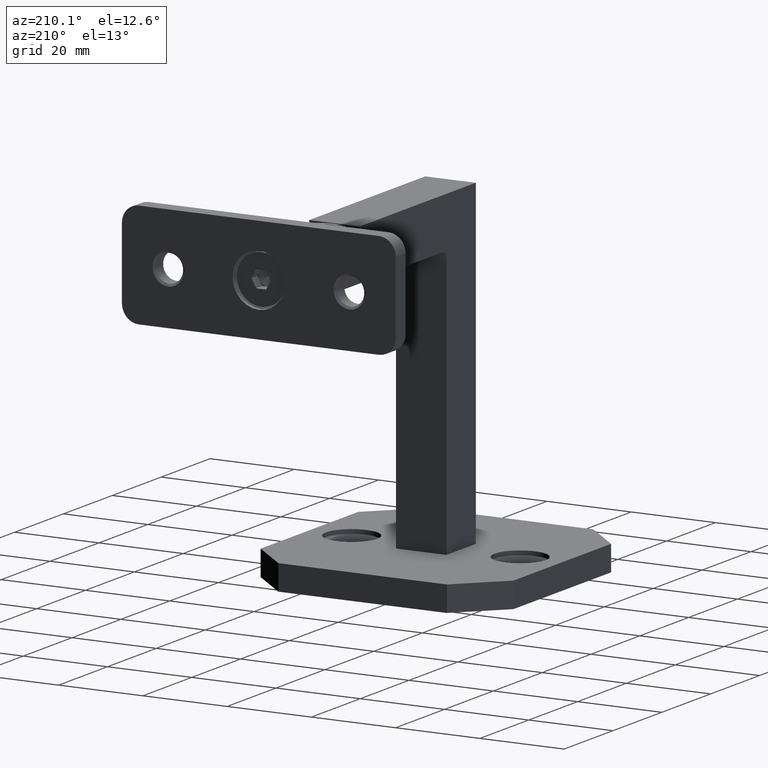
[diagram: clean part render]
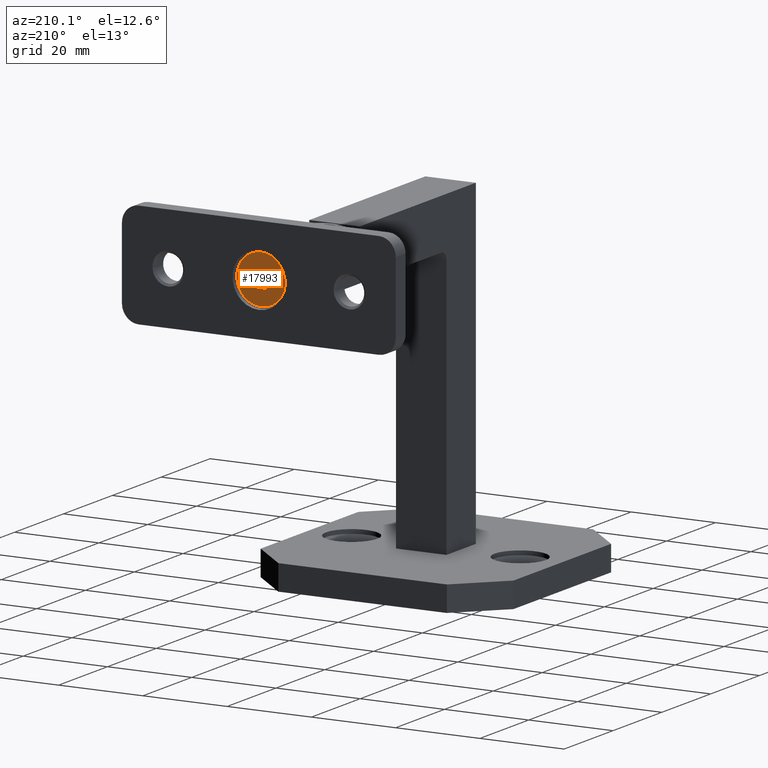
[diagram: same view with one face highlighted and labeled with its STEP entity id]
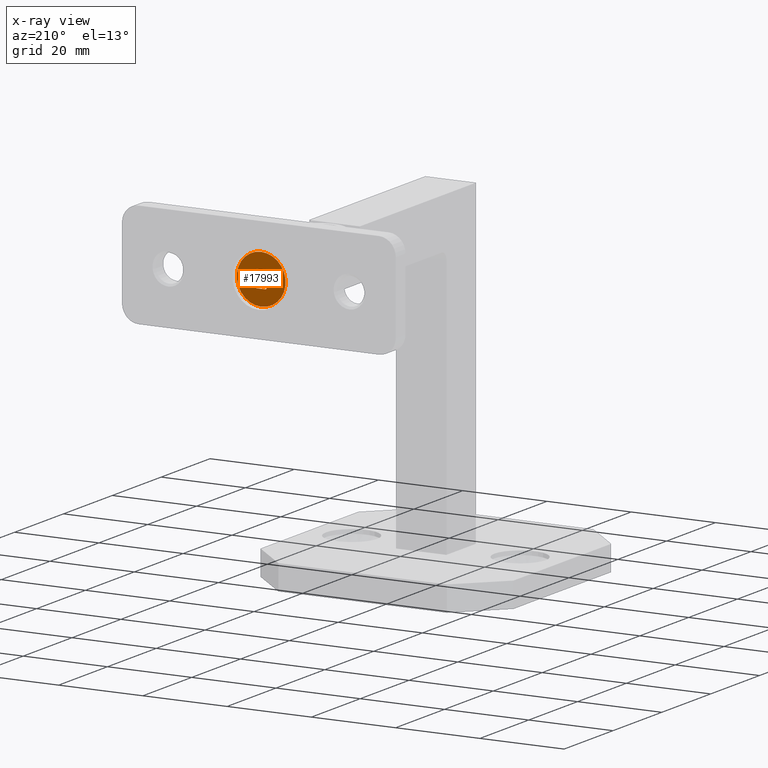
[diagram: x-ray of the same camera — body ghosted, the highlighted face saturated]
A machine part, auxiliary view. The second image highlights one B-rep face of the part: STEP entity #17993.
The next image is the same camera in x-ray: the body ghosted, the highlighted face saturated — about 0% of this face is hidden behind the body in this view.
In plain terms, the highlighted planar face has unit normal (0, 1, 0).
Its self-contained STEP definition (entity closure, byte-faithful):
#217 = CIRCLE ( 'NONE', #14772, 5.784999999999998366 ) ;
#505 = VECTOR ( 'NONE', #675, 1000.000000000000227 ) ;
#675 = DIRECTION ( 'NONE',  ( 0.000000000000000000, 0.5000000000000007772, 0.8660254037844381525 ) ) ;
#680 = EDGE_LOOP ( 'NONE', ( #21448, #2578, #15068, #23680, #17442, #17390 ) ) ;
#1183 = PLANE ( 'NONE',  #7772 ) ;
#2461 = CARTESIAN_POINT ( 'NONE',  ( 0.000000000000000000, 1.160474041071148710, 2.009999999999998455 ) ) ;
#2578 = ORIENTED_EDGE ( 'NONE', *, *, #20068, .T. ) ;
#3301 = FACE_BOUND ( 'NONE', #680, .T. ) ;
#4316 = EDGE_CURVE ( 'NONE', #17733, #14574, #13838, .T. ) ;
#4967 = CARTESIAN_POINT ( 'NONE',  ( 0.000000000000000000, -1.160474041071147600, 2.009999999999999343 ) ) ;
#5431 = VECTOR ( 'NONE', #22619, 1000.000000000000227 ) ;
#5454 = DIRECTION ( 'NONE',  ( 0.000000000000000000, -0.5000000000000007772, 0.8660254037844381525 ) ) ;
#5985 = LINE ( 'NONE', #15137, #5431 ) ;
#6065 = DIRECTION ( 'NONE',  ( 0.000000000000000000, 0.000000000000000000, 1.000000000000000000 ) ) ;
#6096 = ORIENTED_EDGE ( 'NONE', *, *, #22349, .T. ) ;
#6418 = CARTESIAN_POINT ( 'NONE',  ( 0.000000000000000000, 0.000000000000000000, 0.000000000000000000 ) ) ;
#6444 = EDGE_CURVE ( 'NONE', #21820, #17733, #16777, .T. ) ;
#6457 = CARTESIAN_POINT ( 'NONE',  ( 0.000000000000000000, -2.320948082142291646, -2.168404344971008868E-16 ) ) ;
#7052 = CARTESIAN_POINT ( 'NONE',  ( 0.000000000000000000, 1.160474041071148710, -2.009999999999998455 ) ) ;
#7206 = DIRECTION ( 'NONE',  ( 0.000000000000000000, 1.000000000000000000, 5.605651487825218176E-16 ) ) ;
#7741 = VECTOR ( 'NONE', #7206, 1000.000000000000000 ) ;
#7772 = AXIS2_PLACEMENT_3D ( 'NONE', #6418, #21003, #8282 ) ;
#8254 = VERTEX_POINT ( 'NONE', #10363 ) ;
#8282 = DIRECTION ( 'NONE',  ( -0.000000000000000000, 0.000000000000000000, 1.000000000000000000 ) ) ;
#8455 = VECTOR ( 'NONE', #13720, 1000.000000000000114 ) ;
#8617 = VECTOR ( 'NONE', #21533, 1000.000000000000000 ) ;
#8816 = CARTESIAN_POINT ( 'NONE',  ( 0.000000000000000000, 1.160474041071148710, 2.009999999999998455 ) ) ;
#10271 = VERTEX_POINT ( 'NONE', #4967 ) ;
#10363 = CARTESIAN_POINT ( 'NONE',  ( -0.000000000000000000, -1.160474041071148044, -2.009999999999999787 ) ) ;
#11155 = CARTESIAN_POINT ( 'NONE',  ( 0.000000000000000000, 7.084581733067437038E-16, -5.784999999999998366 ) ) ;
#13026 = CARTESIAN_POINT ( 'NONE',  ( 0.000000000000000000, 2.320948082142297864, 1.845044017635223792E-16 ) ) ;
#13176 = CARTESIAN_POINT ( 'NONE',  ( 0.000000000000000000, 0.000000000000000000, 0.000000000000000000 ) ) ;
#13432 = VERTEX_POINT ( 'NONE', #21508 ) ;
#13460 = LINE ( 'NONE', #8816, #8617 ) ;
#13720 = DIRECTION ( 'NONE',  ( 0.000000000000000000, 0.4999999999999987232, -0.8660254037844392627 ) ) ;
#13838 = LINE ( 'NONE', #13026, #20981 ) ;
#14345 = VERTEX_POINT ( 'NONE', #11155 ) ;
#14379 = CIRCLE ( 'NONE', #20593, 5.784999999999998366 ) ;
#14574 = VERTEX_POINT ( 'NONE', #2461 ) ;
#14753 = EDGE_CURVE ( 'NONE', #14574, #10271, #13460, .T. ) ;
#14772 = AXIS2_PLACEMENT_3D ( 'NONE', #13176, #20487, #6065 ) ;
#15068 = ORIENTED_EDGE ( 'NONE', *, *, #17018, .T. ) ;
#15137 = CARTESIAN_POINT ( 'NONE',  ( 0.000000000000000000, -1.160474041071147600, 2.009999999999999343 ) ) ;
#15718 = ORIENTED_EDGE ( 'NONE', *, *, #19122, .T. ) ;
#16247 = CARTESIAN_POINT ( 'NONE',  ( 0.000000000000000000, 2.320948082142297864, 1.845044017635223792E-16 ) ) ;
#16777 = LINE ( 'NONE', #18911, #505 ) ;
#17018 = EDGE_CURVE ( 'NONE', #8254, #21820, #20821, .T. ) ;
#17099 = DIRECTION ( 'NONE',  ( -1.000000000000000000, -0.000000000000000000, -0.000000000000000000 ) ) ;
#17346 = EDGE_CURVE ( 'NONE', #10271, #22952, #5985, .T. ) ;
#17390 = ORIENTED_EDGE ( 'NONE', *, *, #14753, .T. ) ;
#17442 = ORIENTED_EDGE ( 'NONE', *, *, #4316, .T. ) ;
#17557 = LINE ( 'NONE', #23046, #8455 ) ;
#17733 = VERTEX_POINT ( 'NONE', #16247 ) ;
#17993 = ADVANCED_FACE ( 'NONE', ( #22970, #3301 ), #1183, .T. ) ;
#18911 = CARTESIAN_POINT ( 'NONE',  ( 0.000000000000000000, 1.160474041071148710, -2.009999999999998455 ) ) ;
#19122 = EDGE_CURVE ( 'NONE', #13432, #14345, #217, .T. ) ;
#19857 = CARTESIAN_POINT ( 'NONE',  ( -0.000000000000000000, -1.160474041071148044, -2.009999999999999787 ) ) ;
#20068 = EDGE_CURVE ( 'NONE', #22952, #8254, #17557, .T. ) ;
#20487 = DIRECTION ( 'NONE',  ( -1.000000000000000000, -0.000000000000000000, -0.000000000000000000 ) ) ;
#20509 = EDGE_LOOP ( 'NONE', ( #15718, #6096 ) ) ;
#20593 = AXIS2_PLACEMENT_3D ( 'NONE', #20835, #17099, #20908 ) ;
#20821 = LINE ( 'NONE', #19857, #7741 ) ;
#20835 = CARTESIAN_POINT ( 'NONE',  ( 0.000000000000000000, 0.000000000000000000, 0.000000000000000000 ) ) ;
#20908 = DIRECTION ( 'NONE',  ( 0.000000000000000000, 0.000000000000000000, 1.000000000000000000 ) ) ;
#20981 = VECTOR ( 'NONE', #5454, 1000.000000000000227 ) ;
#21003 = DIRECTION ( 'NONE',  ( -1.000000000000000000, 0.000000000000000000, -0.000000000000000000 ) ) ;
#21448 = ORIENTED_EDGE ( 'NONE', *, *, #17346, .T. ) ;
#21508 = CARTESIAN_POINT ( 'NONE',  ( 0.000000000000000000, 0.000000000000000000, 5.784999999999998366 ) ) ;
#21533 = DIRECTION ( 'NONE',  ( 0.000000000000000000, -1.000000000000000000, 3.737100991883480099E-16 ) ) ;
#21820 = VERTEX_POINT ( 'NONE', #7052 ) ;
#22349 = EDGE_CURVE ( 'NONE', #14345, #13432, #14379, .T. ) ;
#22619 = DIRECTION ( 'NONE',  ( -0.000000000000000000, -0.4999999999999989453, -0.8660254037844391517 ) ) ;
#22952 = VERTEX_POINT ( 'NONE', #6457 ) ;
#22970 = FACE_OUTER_BOUND ( 'NONE', #20509, .T. ) ;
#23046 = CARTESIAN_POINT ( 'NONE',  ( -0.000000000000000000, -2.320948082142291646, -2.853186061490888752E-17 ) ) ;
#23680 = ORIENTED_EDGE ( 'NONE', *, *, #6444, .T. ) ;